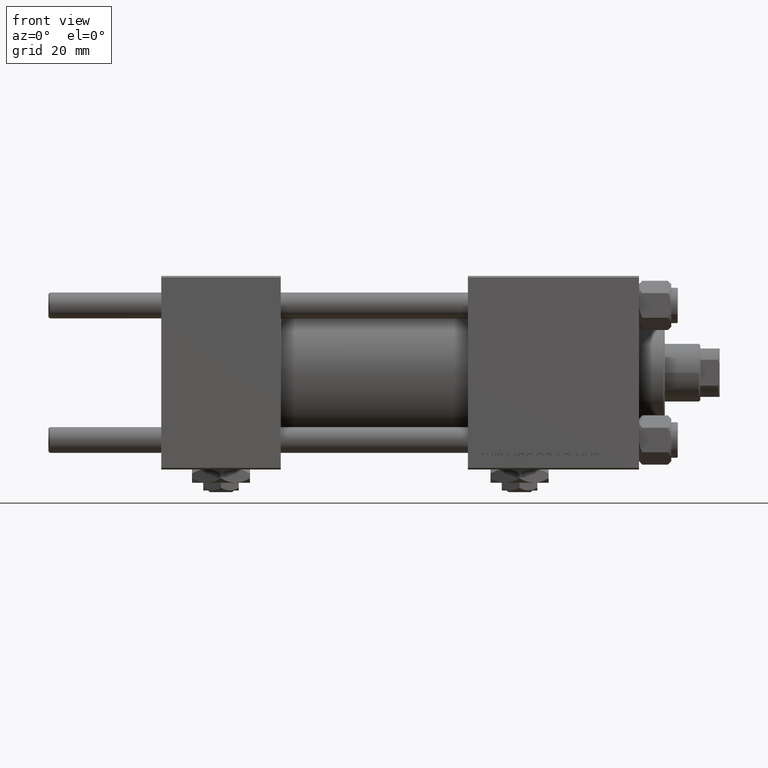
[diagram: clean part render]
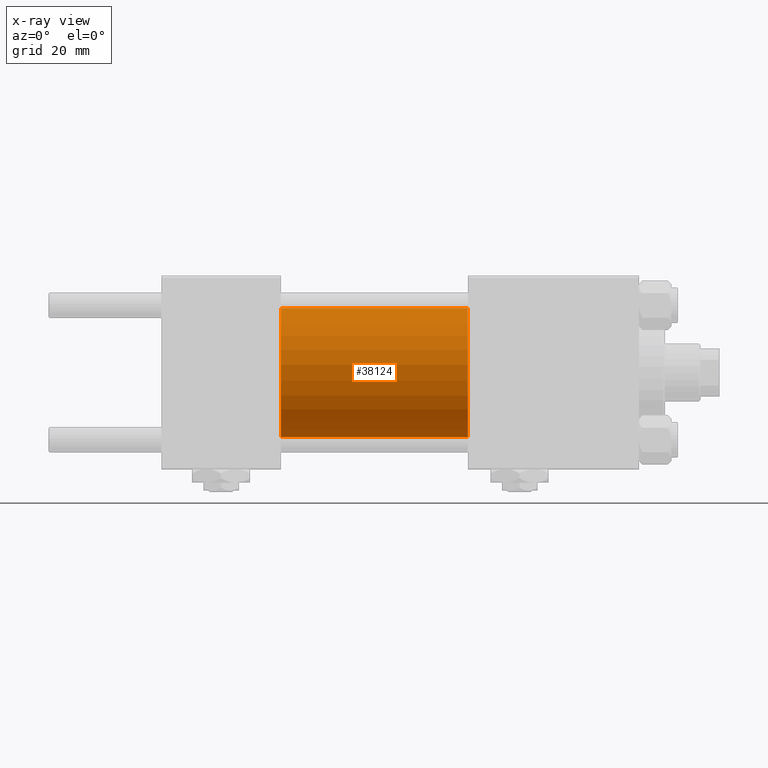
[diagram: x-ray — body ghosted, one internal face saturated and labeled with its STEP entity id]
A machine part, front view, then the same camera in x-ray: the body is ghosted and one INTERNAL B-rep face — a face not visible from any outside direction — is saturated and labeled: STEP entity #38124.
In plain terms, the highlighted cylindrical surface (partial cylindrical patch) has radius 20 mm, axis along (-1, -0, -0).
Its self-contained STEP definition (entity closure, byte-faithful):
#977 = DIRECTION ( 'NONE',  ( -1.000000000000000000, -0.000000000000000000, -0.000000000000000000 ) ) ;
#1678 = EDGE_CURVE ( 'NONE', #45697, #29256, #38402, .T. ) ;
#3809 = LINE ( 'NONE', #32420, #7848 ) ;
#4158 = CARTESIAN_POINT ( 'NONE',  ( 95.00000000000000000, 0.000000000000000000, 0.000000000000000000 ) ) ;
#7848 = VECTOR ( 'NONE', #47928, 1000.000000000000000 ) ;
#7881 = VERTEX_POINT ( 'NONE', #29160 ) ;
#11720 = CARTESIAN_POINT ( 'NONE',  ( 95.00000000000000000, 0.000000000000000000, 0.000000000000000000 ) ) ;
#12490 = EDGE_CURVE ( 'NONE', #45697, #7881, #20922, .T. ) ;
#14189 = CARTESIAN_POINT ( 'NONE',  ( 37.00000000000000000, 0.000000000000000000, 0.000000000000000000 ) ) ;
#14471 = EDGE_LOOP ( 'NONE', ( #19994, #19954, #18885, #50675 ) ) ;
#14915 = AXIS2_PLACEMENT_3D ( 'NONE', #4158, #19674, #24645 ) ;
#15346 = CARTESIAN_POINT ( 'NONE',  ( 95.00000000000000000, 2.449293598294706119E-15, -20.00000000000000000 ) ) ;
#17763 = AXIS2_PLACEMENT_3D ( 'NONE', #11720, #31699, #23823 ) ;
#18738 = VERTEX_POINT ( 'NONE', #46316 ) ;
#18885 = ORIENTED_EDGE ( 'NONE', *, *, #43952, .F. ) ;
#19674 = DIRECTION ( 'NONE',  ( 1.000000000000000000, 0.000000000000000000, 0.000000000000000000 ) ) ;
#19880 = FACE_OUTER_BOUND ( 'NONE', #14471, .T. ) ;
#19954 = ORIENTED_EDGE ( 'NONE', *, *, #23494, .T. ) ;
#19994 = ORIENTED_EDGE ( 'NONE', *, *, #1678, .T. ) ;
#20922 = LINE ( 'NONE', #28550, #30264 ) ;
#23494 = EDGE_CURVE ( 'NONE', #29256, #18738, #3809, .T. ) ;
#23823 = DIRECTION ( 'NONE',  ( 0.000000000000000000, 0.000000000000000000, 1.000000000000000000 ) ) ;
#24645 = DIRECTION ( 'NONE',  ( 0.000000000000000000, 0.000000000000000000, -1.000000000000000000 ) ) ;
#26119 = CARTESIAN_POINT ( 'NONE',  ( 95.00000000000000000, 0.000000000000000000, 20.00000000000000000 ) ) ;
#28285 = CYLINDRICAL_SURFACE ( 'NONE', #17763, 20.00000000000000000 ) ;
#28550 = CARTESIAN_POINT ( 'NONE',  ( 95.00000000000000000, 0.000000000000000000, 20.00000000000000000 ) ) ;
#29160 = CARTESIAN_POINT ( 'NONE',  ( 37.00000000000000000, 0.000000000000000000, 20.00000000000000000 ) ) ;
#29256 = VERTEX_POINT ( 'NONE', #15346 ) ;
#30264 = VECTOR ( 'NONE', #977, 1000.000000000000000 ) ;
#30747 = DIRECTION ( 'NONE',  ( 0.000000000000000000, 0.000000000000000000, -1.000000000000000000 ) ) ;
#31699 = DIRECTION ( 'NONE',  ( -1.000000000000000000, -0.000000000000000000, -0.000000000000000000 ) ) ;
#32420 = CARTESIAN_POINT ( 'NONE',  ( 95.00000000000000000, 2.449293598294706119E-15, -20.00000000000000000 ) ) ;
#38124 = ADVANCED_FACE ( 'NONE', ( #19880 ), #28285, .F. ) ;
#38361 = DIRECTION ( 'NONE',  ( 1.000000000000000000, 0.000000000000000000, 0.000000000000000000 ) ) ;
#38402 = CIRCLE ( 'NONE', #14915, 20.00000000000000000 ) ;
#39598 = CIRCLE ( 'NONE', #51350, 20.00000000000000000 ) ;
#43952 = EDGE_CURVE ( 'NONE', #7881, #18738, #39598, .T. ) ;
#45697 = VERTEX_POINT ( 'NONE', #26119 ) ;
#46316 = CARTESIAN_POINT ( 'NONE',  ( 37.00000000000000000, 2.449293598294706119E-15, -20.00000000000000000 ) ) ;
#47928 = DIRECTION ( 'NONE',  ( -1.000000000000000000, -0.000000000000000000, -0.000000000000000000 ) ) ;
#50675 = ORIENTED_EDGE ( 'NONE', *, *, #12490, .F. ) ;
#51350 = AXIS2_PLACEMENT_3D ( 'NONE', #14189, #38361, #30747 ) ;